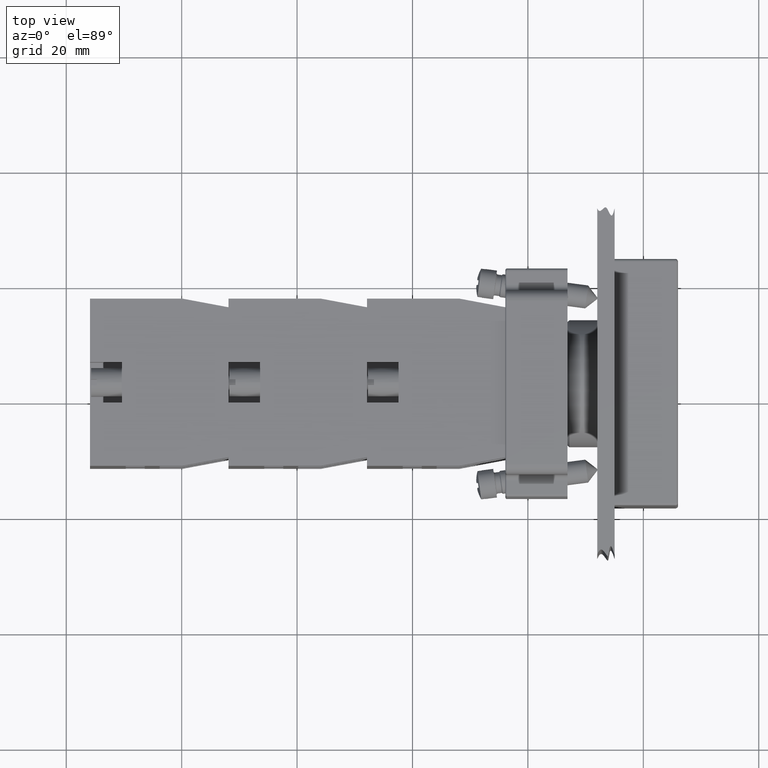
[diagram: clean part render]
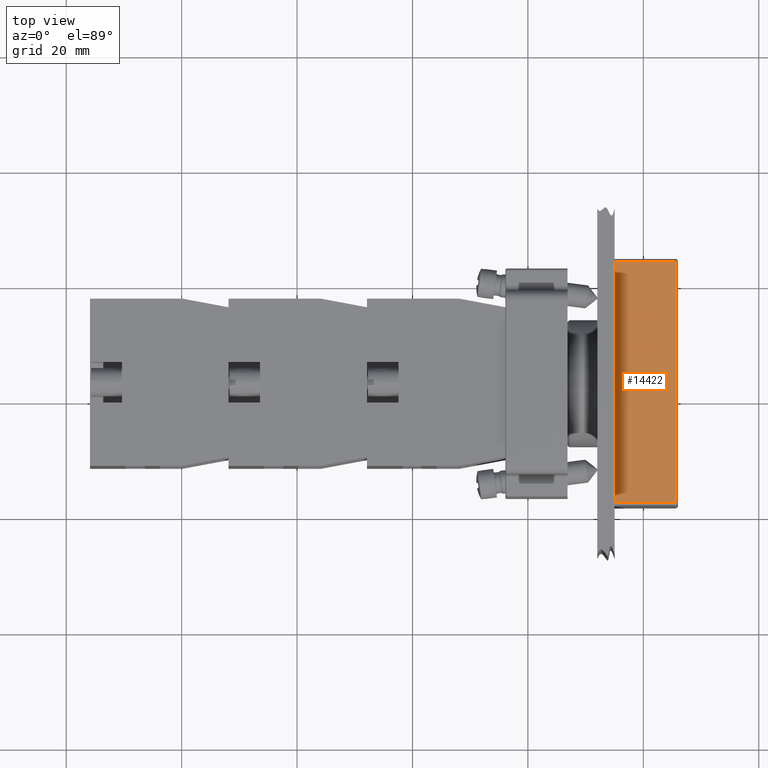
[diagram: same view with one face highlighted and labeled with its STEP entity id]
A machine part, top view. The second image highlights one B-rep face of the part: STEP entity #14422.
In plain terms, the highlighted planar face has unit normal (0, 0, 1).
Its self-contained STEP definition (entity closure, byte-faithful):
#13491=CARTESIAN_POINT('',(2.060615972896345,-20.906685679495368,14.999999999999991));
#13492=VERTEX_POINT('',#13491);
#13510=CARTESIAN_POINT('',(2.060615972896345,20.843314320504650,14.999999999999993));
#13511=VERTEX_POINT('',#13510);
#13519=CARTESIAN_POINT('',(2.060615972896345,20.843314320504650,14.999999999999993));
#13520=DIRECTION('',(0.0,-1.0,0.0));
#13521=VECTOR('',#13520,41.750000000000014);
#13522=LINE('',#13519,#13521);
#13523=EDGE_CURVE('',#13511,#13492,#13522,.T.);
#14380=CARTESIAN_POINT('',(-8.439384027103658,-20.906685679495368,14.999999999999991));
#14381=VERTEX_POINT('',#14380);
#14382=CARTESIAN_POINT('',(-8.439384027103658,-20.906685679495368,14.999999999999991));
#14383=DIRECTION('',(1.0,0.0,0.0));
#14384=VECTOR('',#14383,10.500000000000004);
#14385=LINE('',#14382,#14384);
#14386=EDGE_CURVE('',#14381,#13492,#14385,.T.);
#14399=CARTESIAN_POINT('',(-8.439384027103658,-20.906685679495368,14.999999999999991));
#14400=DIRECTION('',(0.0,0.0,1.0));
#14401=DIRECTION('',(1.0,0.0,0.0));
#14402=AXIS2_PLACEMENT_3D('',#14399,#14400,#14401);
#14403=PLANE('',#14402);
#14404=ORIENTED_EDGE('',*,*,#13523,.F.);
#14405=CARTESIAN_POINT('',(-8.439384027103658,20.843314320504650,14.999999999999993));
#14406=VERTEX_POINT('',#14405);
#14407=CARTESIAN_POINT('',(-8.439384027103658,20.843314320504650,14.999999999999993));
#14408=DIRECTION('',(1.0,0.0,0.0));
#14409=VECTOR('',#14408,10.500000000000004);
#14410=LINE('',#14407,#14409);
#14411=EDGE_CURVE('',#14406,#13511,#14410,.T.);
#14412=ORIENTED_EDGE('',*,*,#14411,.F.);
#14413=CARTESIAN_POINT('',(-8.439384027103658,-20.906685679495368,14.999999999999991));
#14414=DIRECTION('',(0.0,1.0,0.0));
#14415=VECTOR('',#14414,41.750000000000014);
#14416=LINE('',#14413,#14415);
#14417=EDGE_CURVE('',#14381,#14406,#14416,.T.);
#14418=ORIENTED_EDGE('',*,*,#14417,.F.);
#14419=ORIENTED_EDGE('',*,*,#14386,.T.);
#14420=EDGE_LOOP('',(#14404,#14412,#14418,#14419));
#14421=FACE_OUTER_BOUND('',#14420,.T.);
#14422=ADVANCED_FACE('',(#14421),#14403,.T.);